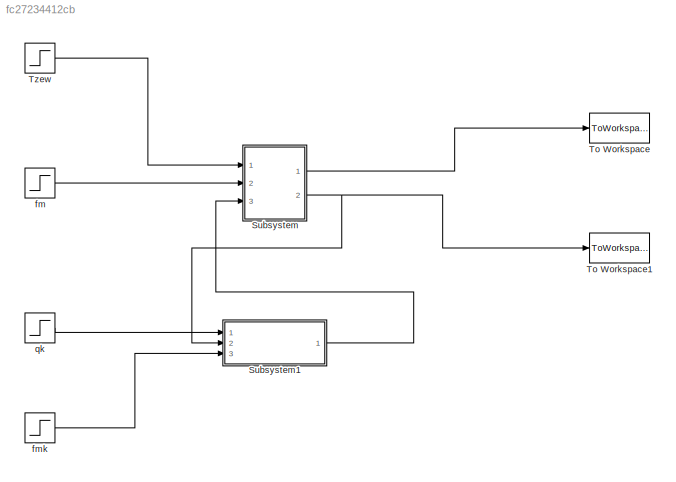
MODEL slx_fc27234412cb
KIND model
CONFIG AbsTol = 1e-6
CONFIG EnableMultiTasking = on
CONFIG FixedStep = auto
CONFIG MaxStep = auto
CONFIG MinStep = auto
CONFIG RelTol = 1e-3
CONFIG SampleTimeConstraint = Unconstrained
CONFIG Solver = ode45
CONFIG SolverName = ode45
CONFIG StartTime = 0.0
CONFIG StopTime = 100
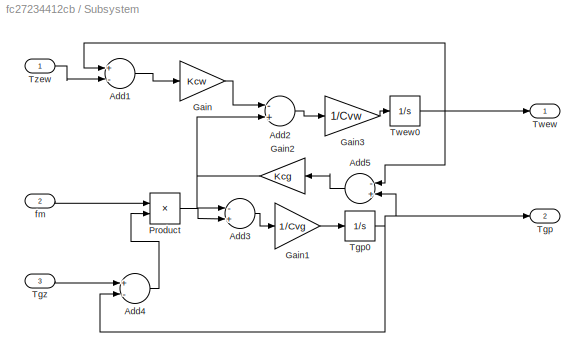
BLOCK [SubSystem] Subsystem
  Ports = [3, 2]
  RequestExecContextInheritance = off
BLOCK [Sum] Subsystem/Add1
  InputSameDT = off
  Inputs = +-
  OutDataTypeStr = Inherit: Inherit via internal rule
  Ports = [2, 1]
  SaturateOnIntegerOverflow = off
BLOCK [Sum] Subsystem/Add2
  InputSameDT = off
  Inputs = -+
  OutDataTypeStr = Inherit: Inherit via internal rule
  Ports = [2, 1]
  SaturateOnIntegerOverflow = off
BLOCK [Sum] Subsystem/Add3
  InputSameDT = off
  Inputs = -+
  OutDataTypeStr = Inherit: Inherit via internal rule
  Ports = [2, 1]
  SaturateOnIntegerOverflow = off
BLOCK [Sum] Subsystem/Add4
  InputSameDT = off
  Inputs = +-
  OutDataTypeStr = Inherit: Inherit via internal rule
  Ports = [2, 1]
  SaturateOnIntegerOverflow = off
BLOCK [Sum] Subsystem/Add5
  InputSameDT = off
  Inputs = -+
  OutDataTypeStr = Inherit: Inherit via internal rule
  Ports = [2, 1]
  SaturateOnIntegerOverflow = off
BLOCK [Gain] Subsystem/Gain
  Gain = Kcw
  OutDataTypeStr = Inherit: Inherit via internal rule
  ParamDataTypeStr = Inherit: Inherit via internal rule
  SaturateOnIntegerOverflow = off
BLOCK [Gain] Subsystem/Gain1
  Gain = 1/Cvg
  OutDataTypeStr = Inherit: Inherit via internal rule
  ParamDataTypeStr = Inherit: Inherit via internal rule
  SaturateOnIntegerOverflow = off
BLOCK [Gain] Subsystem/Gain2
  Gain = Kcg
  OutDataTypeStr = Inherit: Inherit via internal rule
  ParamDataTypeStr = Inherit: Inherit via internal rule
  SaturateOnIntegerOverflow = off
BLOCK [Gain] Subsystem/Gain3
  Gain = 1/Cvw
  OutDataTypeStr = Inherit: Inherit via internal rule
  ParamDataTypeStr = Inherit: Inherit via internal rule
  SaturateOnIntegerOverflow = off
BLOCK [Product] Subsystem/Product
  InputSameDT = off
  OutDataTypeStr = Inherit: Inherit via internal rule
  Ports = [2, 1]
  RndMeth = Floor
  SaturateOnIntegerOverflow = off
BLOCK [Outport] Subsystem/Tgp
  IconDisplay = Port number
  Port = 2
BLOCK [Integrator] Subsystem/Tgp0
  InitialCondition = TgpN
  Ports = [1, 1]
BLOCK [Inport] Subsystem/Tgz
  IconDisplay = Port number
  Port = 3
BLOCK [Outport] Subsystem/Twew
  IconDisplay = Port number
BLOCK [Integrator] Subsystem/Twew0
  InitialCondition = TwewN
  Ports = [1, 1]
BLOCK [Inport] Subsystem/Tzew
  IconDisplay = Port number
BLOCK [Inport] Subsystem/fm
  IconDisplay = Port number
  Port = 2
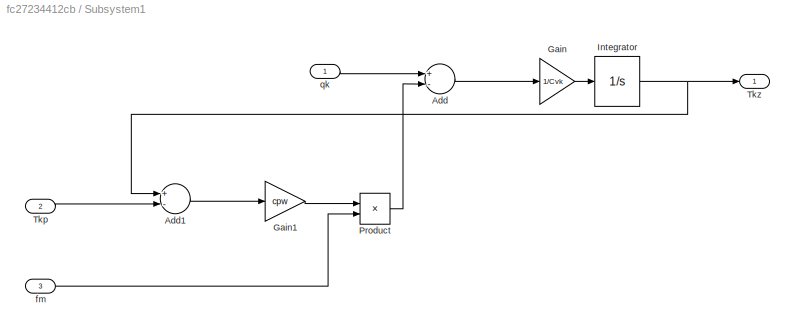
BLOCK [SubSystem] Subsystem1
  Ports = [3, 1]
  RequestExecContextInheritance = off
BLOCK [Sum] Subsystem1/Add
  InputSameDT = off
  Inputs = +-
  OutDataTypeStr = Inherit: Inherit via internal rule
  Ports = [2, 1]
  SaturateOnIntegerOverflow = off
BLOCK [Sum] Subsystem1/Add1
  InputSameDT = off
  Inputs = +-
  OutDataTypeStr = Inherit: Inherit via internal rule
  Ports = [2, 1]
  SaturateOnIntegerOverflow = off
BLOCK [Gain] Subsystem1/Gain
  Gain = 1/Cvk
  OutDataTypeStr = Inherit: Inherit via internal rule
  ParamDataTypeStr = Inherit: Inherit via internal rule
  SaturateOnIntegerOverflow = off
BLOCK [Gain] Subsystem1/Gain1
  Gain = cpw
  OutDataTypeStr = Inherit: Inherit via internal rule
  ParamDataTypeStr = Inherit: Inherit via internal rule
  SaturateOnIntegerOverflow = off
BLOCK [Integrator] Subsystem1/Integrator
  Ports = [1, 1]
BLOCK [Product] Subsystem1/Product
  InputSameDT = off
  OutDataTypeStr = Inherit: Inherit via internal rule
  Ports = [2, 1]
  RndMeth = Floor
  SaturateOnIntegerOverflow = off
BLOCK [Inport] Subsystem1/Tkp
  IconDisplay = Port number
  Port = 2
BLOCK [Outport] Subsystem1/Tkz
  IconDisplay = Port number
BLOCK [Inport] Subsystem1/fm
  IconDisplay = Port number
  Port = 3
BLOCK [Inport] Subsystem1/qk
  IconDisplay = Port number
BLOCK [ToWorkspace] To Workspace
  FixptAsFi = on
  MaxDataPoints = inf
  Ports = [1]
  SampleTime = -1
  VariableName = Twew
BLOCK [ToWorkspace] To Workspace1
  FixptAsFi = on
  MaxDataPoints = inf
  Ports = [1]
  SampleTime = -1
  VariableName = Tgp
BLOCK [Step] Tzew 
  After = Tzew0 + dTzew
  Before = Tzew0 + dTzew
  SampleTime = 0
BLOCK [Step] fm 
  After = fmgN + dfmg
  Before = fmgN + dfmg
  SampleTime = 0
BLOCK [Step] fmk
  After = fmk0 + dfmk
  Before = fmk0 + dfmk
  SampleTime = 0
BLOCK [Step] qk
  After = qk0 + dqk
  Before = qk0 + dqk
  SampleTime = 0
LINE Subsystem/Add1:1 -> Subsystem/Gain:1
LINE Subsystem/Add2:1 -> Subsystem/Gain3:1
LINE Subsystem/Add3:1 -> Subsystem/Gain1:1
LINE Subsystem/Add4:1 -> Subsystem/Product:2
LINE Subsystem/Add5:1 -> Subsystem/Gain2:1
LINE Subsystem/Gain1:1 -> Subsystem/Tgp0:1
NET Subsystem/Gain2:1 -> Subsystem/Add2:2, Subsystem/Add3:1
LINE Subsystem/Gain3:1 -> Subsystem/Twew0:1
LINE Subsystem/Gain:1 -> Subsystem/Add2:1
LINE Subsystem/Product:1 -> Subsystem/Add3:2
NET Subsystem/Tgp0:1 -> Subsystem/Add4:2, Subsystem/Add5:2, Subsystem/Tgp:1
LINE Subsystem/Tgz:1 -> Subsystem/Add4:1
NET Subsystem/Twew0:1 -> Subsystem/Add1:1, Subsystem/Add5:1, Subsystem/Twew:1
LINE Subsystem/Tzew:1 -> Subsystem/Add1:2
LINE Subsystem/fm:1 -> Subsystem/Product:1
LINE Subsystem1/Add1:1 -> Subsystem1/Gain1:1
LINE Subsystem1/Add:1 -> Subsystem1/Gain:1
LINE Subsystem1/Gain1:1 -> Subsystem1/Product:1
LINE Subsystem1/Gain:1 -> Subsystem1/Integrator:1
NET Subsystem1/Integrator:1 -> Subsystem1/Add1:1, Subsystem1/Tkz:1
LINE Subsystem1/Product:1 -> Subsystem1/Add:2
LINE Subsystem1/Tkp:1 -> Subsystem1/Add1:2
LINE Subsystem1/fm:1 -> Subsystem1/Product:2
LINE Subsystem1/qk:1 -> Subsystem1/Add:1
LINE Subsystem1:1 -> Subsystem:3
LINE Subsystem:1 -> To Workspace:1
NET Subsystem:2 -> Subsystem1:2, To Workspace1:1
LINE Tzew :1 -> Subsystem:1
LINE fm :1 -> Subsystem:2
LINE fmk:1 -> Subsystem1:3
LINE qk:1 -> Subsystem1:1
note: NET lines group one-source signal fan-out (src -> all destinations, sorted); 1:1 wires keep LINE
